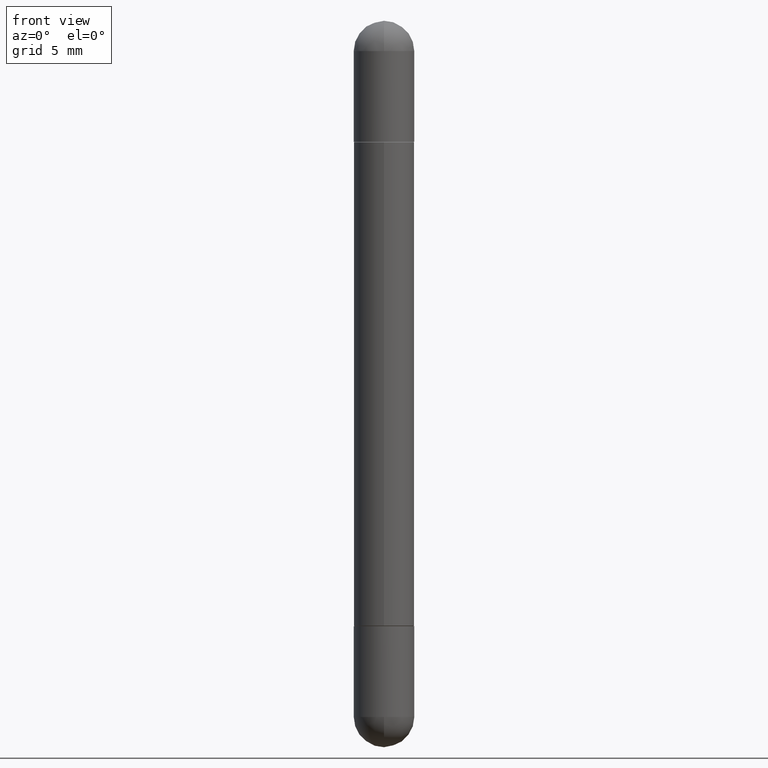
[diagram: clean part render]
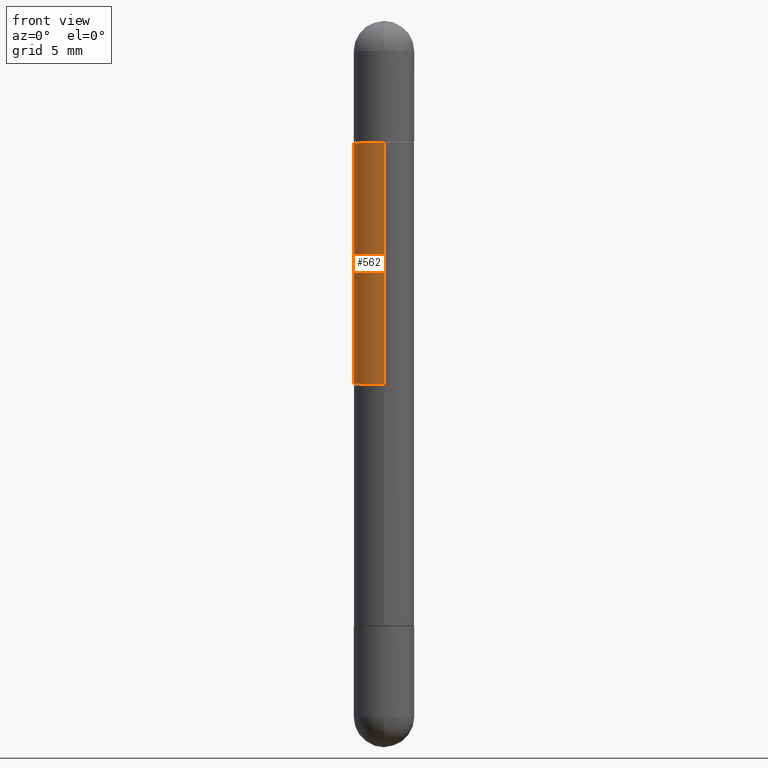
[diagram: same view with one face highlighted and labeled with its STEP entity id]
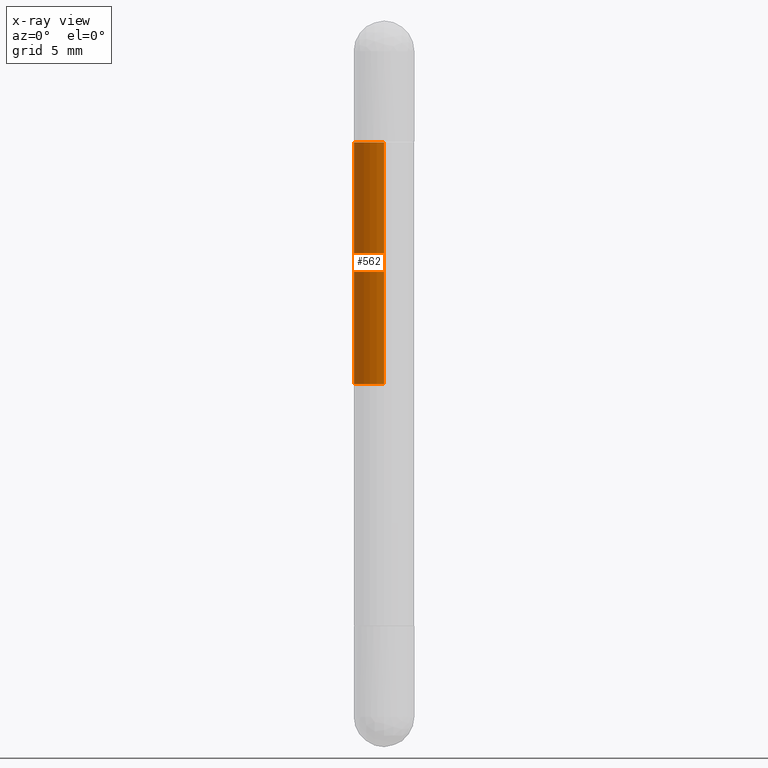
[diagram: x-ray of the same camera — body ghosted, the highlighted face saturated]
A machine part, front view. The second image highlights one B-rep face of the part: STEP entity #562.
The next image is the same camera in x-ray: the body ghosted, the highlighted face saturated — about 0% of this face is hidden behind the body in this view.
In plain terms, the highlighted cylindrical surface (edge-blend (fillet) strip) has radius 1.5875 mm, axis along (-0, 0, -1).
Its self-contained STEP definition (entity closure, byte-faithful):
#5 = VECTOR ( 'NONE', #60, 39.37007874015748143 ) ;
#33 = CARTESIAN_POINT ( 'NONE',  ( 3.065731949019290085E-29, -4.344618647447427774E-15, -0.2510000000000003895 ) ) ;
#60 = DIRECTION ( 'NONE',  ( -2.454549198574291714E-29, 3.478477700118036560E-15, -1.000000000000000000 ) ) ;
#67 = CARTESIAN_POINT ( 'NONE',  ( -4.364351673553922611E-16, -0.06250000000000009714, -1.500000000000000666 ) ) ;
#94 = DIRECTION ( 'NONE',  ( -6.982962677686266711E-15, -1.000000000000000000, -3.278217592397107185E-15 ) ) ;
#126 = ORIENTED_EDGE ( 'NONE', *, *, #405, .F. ) ;
#133 = CARTESIAN_POINT ( 'NONE',  ( 1.840911898930719346E-29, -2.608858275088528603E-15, -0.7500000000000002220 ) ) ;
#149 = EDGE_CURVE ( 'NONE', #800, #273, #475, .T. ) ;
#152 = VECTOR ( 'NONE', #556, 39.37007874015748143 ) ;
#161 = VERTEX_POINT ( 'NONE', #291 ) ;
#171 = DIRECTION ( 'NONE',  ( -2.454549198574291714E-29, 3.478477700118036955E-15, -1.000000000000000000 ) ) ;
#185 = CARTESIAN_POINT ( 'NONE',  ( 4.287811248607212650E-16, 0.06250000000000009714, -1.500000000000000222 ) ) ;
#194 = CYLINDRICAL_SURFACE ( 'NONE', #571, 0.06250000000000009714 ) ;
#196 = CARTESIAN_POINT ( 'NONE',  ( -4.364351673553621857E-16, -0.06250000000000452416, -0.2510000000000006115 ) ) ;
#243 = LINE ( 'NONE', #185, #152 ) ;
#273 = VERTEX_POINT ( 'NONE', #196 ) ;
#279 = AXIS2_PLACEMENT_3D ( 'NONE', #133, #579, #649 ) ;
#290 = CARTESIAN_POINT ( 'NONE',  ( 4.287811248607524250E-16, 0.06249999999999581585, -0.2510000000000002229 ) ) ;
#291 = CARTESIAN_POINT ( 'NONE',  ( 4.287811248607516854E-16, 0.06249999999999748118, -0.7500000000000002220 ) ) ;
#318 = CARTESIAN_POINT ( 'NONE',  ( 0.000000000000000000, 0.000000000000000000, -1.500000000000000444 ) ) ;
#333 = ORIENTED_EDGE ( 'NONE', *, *, #645, .F. ) ;
#346 = EDGE_LOOP ( 'NONE', ( #609, #742, #333, #126 ) ) ;
#405 = EDGE_CURVE ( 'NONE', #273, #534, #501, .T. ) ;
#411 = EDGE_CURVE ( 'NONE', #800, #161, #243, .T. ) ;
#412 = CIRCLE ( 'NONE', #279, 0.06250000000000009714 ) ;
#418 = DIRECTION ( 'NONE',  ( -6.982962677686265133E-15, -1.000000000000000000, -4.370956789862814050E-15 ) ) ;
#440 = CARTESIAN_POINT ( 'NONE',  ( -4.364351673553677571E-16, -0.06250000000000270617, -0.7500000000000002220 ) ) ;
#467 = AXIS2_PLACEMENT_3D ( 'NONE', #33, #659, #94 ) ;
#475 = CIRCLE ( 'NONE', #467, 0.06250000000000016653 ) ;
#501 = LINE ( 'NONE', #67, #5 ) ;
#534 = VERTEX_POINT ( 'NONE', #440 ) ;
#556 = DIRECTION ( 'NONE',  ( -2.454549198574291714E-29, 3.478477700118036560E-15, -1.000000000000000000 ) ) ;
#562 = ADVANCED_FACE ( 'NONE', ( #756 ), #194, .T. ) ;
#571 = AXIS2_PLACEMENT_3D ( 'NONE', #318, #171, #418 ) ;
#579 = DIRECTION ( 'NONE',  ( -0.000000000000000000, -0.000000000000000000, -1.000000000000000000 ) ) ;
#609 = ORIENTED_EDGE ( 'NONE', *, *, #149, .F. ) ;
#645 = EDGE_CURVE ( 'NONE', #534, #161, #412, .T. ) ;
#649 = DIRECTION ( 'NONE',  ( -1.000000000000000000, 0.000000000000000000, 0.000000000000000000 ) ) ;
#659 = DIRECTION ( 'NONE',  ( 2.454549198574291714E-29, -3.478477700118036955E-15, 1.000000000000000000 ) ) ;
#742 = ORIENTED_EDGE ( 'NONE', *, *, #411, .T. ) ;
#756 = FACE_OUTER_BOUND ( 'NONE', #346, .T. ) ;
#800 = VERTEX_POINT ( 'NONE', #290 ) ;